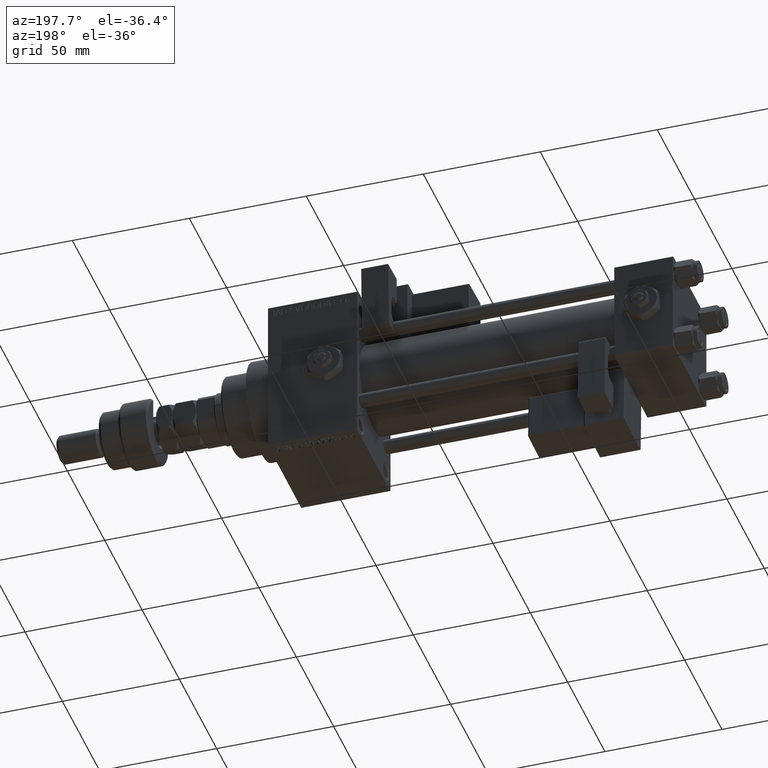
[diagram: clean part render]
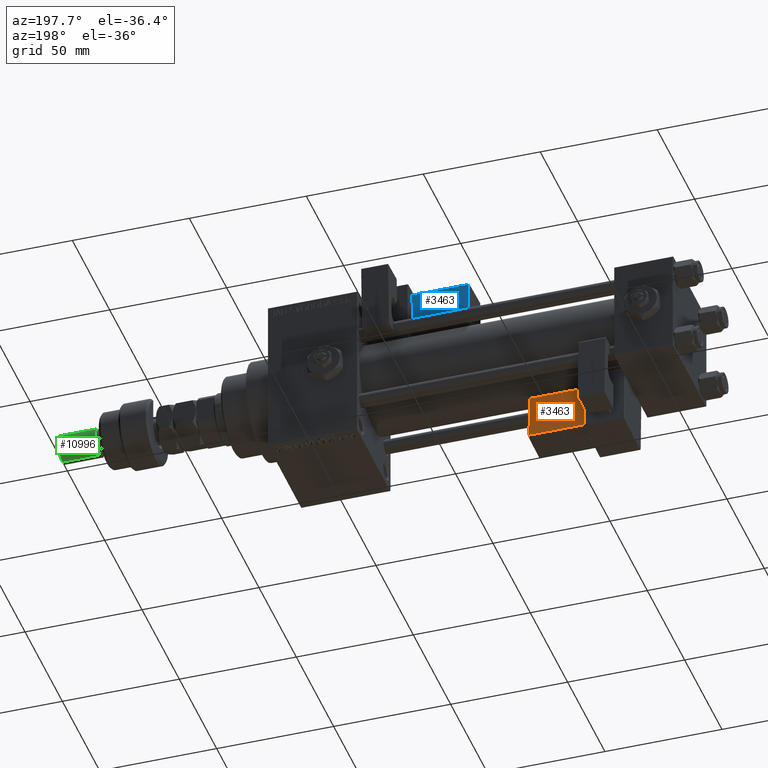
[diagram: same view with three faces highlighted in distinct colors, each labeled with its STEP entity id]
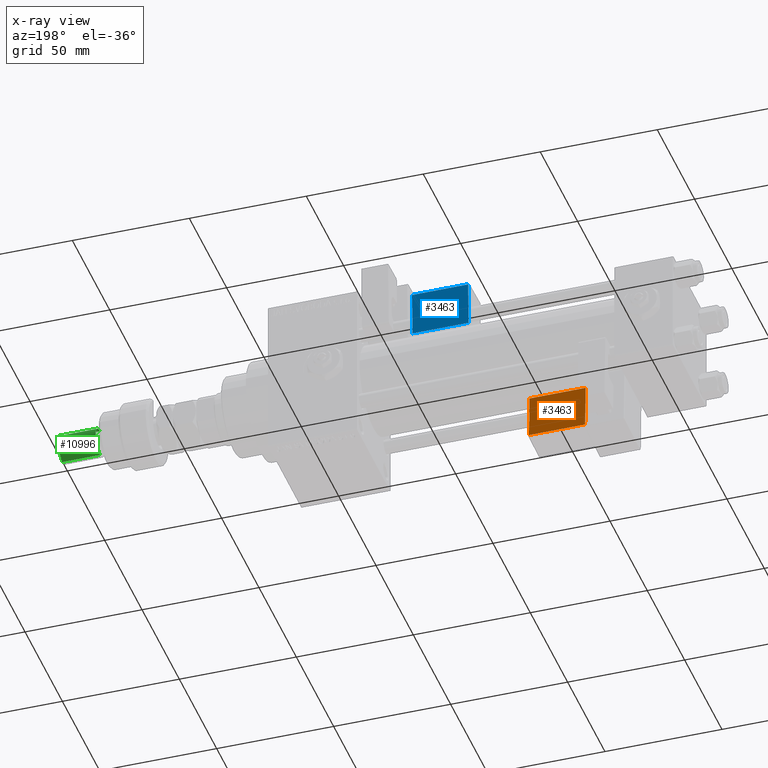
[diagram: x-ray of the same camera — body ghosted, the three highlighted faces saturated]
A machine part, auxiliary view with three faces highlighted in distinct colors.
The next image is the same camera in x-ray (body ghosted, the three faces saturated) — at least one of them is partly hidden behind the body in this view.
Their STEP definitions:

[orange] entity #3463 — the highlighted planar face has unit normal (0, -0.9994, -0.0353).
#1181 = VECTOR ( 'NONE', #13347, 1000.000000000000000 ) ;
#1880 = ORIENTED_EDGE ( 'NONE', *, *, #20697, .T. ) ;
#3463 = ADVANCED_FACE ( 'NONE', ( #6222 ), #47966, .F. ) ;
#4168 = CARTESIAN_POINT ( 'NONE',  ( 9.250000000000003553, -15.25000000000000000, 2.500000000000005773 ) ) ;
#6104 = EDGE_CURVE ( 'NONE', #25149, #50579, #13265, .T. ) ;
#6222 = FACE_OUTER_BOUND ( 'NONE', #16767, .T. ) ;
#9137 = CARTESIAN_POINT ( 'NONE',  ( 33.25000000000000000, -15.25000000000000000, 2.000000000000008438 ) ) ;
#12955 = LINE ( 'NONE', #16541, #49583 ) ;
#13265 = LINE ( 'NONE', #9137, #27894 ) ;
#13347 = DIRECTION ( 'NONE',  ( -1.000000000000000000, 0.000000000000000000, -1.334402673828313339E-16 ) ) ;
#16541 = CARTESIAN_POINT ( 'NONE',  ( 9.250000000000001776, -15.25000000000000000, 22.00000000000000355 ) ) ;
#16767 = EDGE_LOOP ( 'NONE', ( #1880, #41578, #51120, #51319 ) ) ;
#20697 = EDGE_CURVE ( 'NONE', #50579, #26326, #46849, .T. ) ;
#23516 = CARTESIAN_POINT ( 'NONE',  ( 33.75000000000000000, -15.25000000000000000, 21.50000000000000355 ) ) ;
#23612 = EDGE_CURVE ( 'NONE', #36472, #25149, #35856, .T. ) ;
#25149 = VERTEX_POINT ( 'NONE', #45147 ) ;
#25814 = VECTOR ( 'NONE', #52852, 1000.000000000000000 ) ;
#26326 = VERTEX_POINT ( 'NONE', #4168 ) ;
#27894 = VECTOR ( 'NONE', #37960, 1000.000000000000000 ) ;
#29677 = DIRECTION ( 'NONE',  ( -1.334402673828313339E-16, 0.000000000000000000, 1.000000000000000000 ) ) ;
#29856 = CARTESIAN_POINT ( 'NONE',  ( 9.250000000000001776, -15.25000000000000000, 21.50000000000000000 ) ) ;
#31464 = CARTESIAN_POINT ( 'NONE',  ( 33.75000000000000000, -15.25000000000000000, 22.00000000000000711 ) ) ;
#32000 = DIRECTION ( 'NONE',  ( 0.000000000000000000, -0.000000000000000000, -1.000000000000000000 ) ) ;
#34796 = AXIS2_PLACEMENT_3D ( 'NONE', #31464, #39972, #32000 ) ;
#35856 = LINE ( 'NONE', #23516, #25814 ) ;
#36472 = VERTEX_POINT ( 'NONE', #29856 ) ;
#37960 = DIRECTION ( 'NONE',  ( 1.734723475976807341E-16, -0.000000000000000000, -1.000000000000000000 ) ) ;
#38372 = CARTESIAN_POINT ( 'NONE',  ( 33.25000000000000000, -15.25000000000000000, 2.500000000000009326 ) ) ;
#39972 = DIRECTION ( 'NONE',  ( 0.000000000000000000, -1.000000000000000000, 0.000000000000000000 ) ) ;
#41578 = ORIENTED_EDGE ( 'NONE', *, *, #52074, .T. ) ;
#45147 = CARTESIAN_POINT ( 'NONE',  ( 33.25000000000000000, -15.25000000000000000, 21.50000000000000355 ) ) ;
#46849 = LINE ( 'NONE', #50399, #1181 ) ;
#47966 = PLANE ( 'NONE',  #34796 ) ;
#49583 = VECTOR ( 'NONE', #29677, 1000.000000000000000 ) ;
#50399 = CARTESIAN_POINT ( 'NONE',  ( 33.75000000000000000, -15.25000000000000000, 2.500000000000009326 ) ) ;
#50579 = VERTEX_POINT ( 'NONE', #38372 ) ;
#51120 = ORIENTED_EDGE ( 'NONE', *, *, #23612, .T. ) ;
#51319 = ORIENTED_EDGE ( 'NONE', *, *, #6104, .T. ) ;
#52074 = EDGE_CURVE ( 'NONE', #26326, #36472, #12955, .T. ) ;
#52852 = DIRECTION ( 'NONE',  ( 1.000000000000000000, -0.000000000000000000, 1.334402673828313339E-16 ) ) ;

[blue] entity #3463 — the highlighted planar face has unit normal (0, -0.9994, 0.0353).
#1181 = VECTOR ( 'NONE', #13347, 1000.000000000000000 ) ;
#1880 = ORIENTED_EDGE ( 'NONE', *, *, #20697, .T. ) ;
#3463 = ADVANCED_FACE ( 'NONE', ( #6222 ), #47966, .F. ) ;
#4168 = CARTESIAN_POINT ( 'NONE',  ( 9.250000000000003553, -15.25000000000000000, 2.500000000000005773 ) ) ;
#6104 = EDGE_CURVE ( 'NONE', #25149, #50579, #13265, .T. ) ;
#6222 = FACE_OUTER_BOUND ( 'NONE', #16767, .T. ) ;
#9137 = CARTESIAN_POINT ( 'NONE',  ( 33.25000000000000000, -15.25000000000000000, 2.000000000000008438 ) ) ;
#12955 = LINE ( 'NONE', #16541, #49583 ) ;
#13265 = LINE ( 'NONE', #9137, #27894 ) ;
#13347 = DIRECTION ( 'NONE',  ( -1.000000000000000000, 0.000000000000000000, -1.334402673828313339E-16 ) ) ;
#16541 = CARTESIAN_POINT ( 'NONE',  ( 9.250000000000001776, -15.25000000000000000, 22.00000000000000355 ) ) ;
#16767 = EDGE_LOOP ( 'NONE', ( #1880, #41578, #51120, #51319 ) ) ;
#20697 = EDGE_CURVE ( 'NONE', #50579, #26326, #46849, .T. ) ;
#23516 = CARTESIAN_POINT ( 'NONE',  ( 33.75000000000000000, -15.25000000000000000, 21.50000000000000355 ) ) ;
#23612 = EDGE_CURVE ( 'NONE', #36472, #25149, #35856, .T. ) ;
#25149 = VERTEX_POINT ( 'NONE', #45147 ) ;
#25814 = VECTOR ( 'NONE', #52852, 1000.000000000000000 ) ;
#26326 = VERTEX_POINT ( 'NONE', #4168 ) ;
#27894 = VECTOR ( 'NONE', #37960, 1000.000000000000000 ) ;
#29677 = DIRECTION ( 'NONE',  ( -1.334402673828313339E-16, 0.000000000000000000, 1.000000000000000000 ) ) ;
#29856 = CARTESIAN_POINT ( 'NONE',  ( 9.250000000000001776, -15.25000000000000000, 21.50000000000000000 ) ) ;
#31464 = CARTESIAN_POINT ( 'NONE',  ( 33.75000000000000000, -15.25000000000000000, 22.00000000000000711 ) ) ;
#32000 = DIRECTION ( 'NONE',  ( 0.000000000000000000, -0.000000000000000000, -1.000000000000000000 ) ) ;
#34796 = AXIS2_PLACEMENT_3D ( 'NONE', #31464, #39972, #32000 ) ;
#35856 = LINE ( 'NONE', #23516, #25814 ) ;
#36472 = VERTEX_POINT ( 'NONE', #29856 ) ;
#37960 = DIRECTION ( 'NONE',  ( 1.734723475976807341E-16, -0.000000000000000000, -1.000000000000000000 ) ) ;
#38372 = CARTESIAN_POINT ( 'NONE',  ( 33.25000000000000000, -15.25000000000000000, 2.500000000000009326 ) ) ;
#39972 = DIRECTION ( 'NONE',  ( 0.000000000000000000, -1.000000000000000000, 0.000000000000000000 ) ) ;
#41578 = ORIENTED_EDGE ( 'NONE', *, *, #52074, .T. ) ;
#45147 = CARTESIAN_POINT ( 'NONE',  ( 33.25000000000000000, -15.25000000000000000, 21.50000000000000355 ) ) ;
#46849 = LINE ( 'NONE', #50399, #1181 ) ;
#47966 = PLANE ( 'NONE',  #34796 ) ;
#49583 = VECTOR ( 'NONE', #29677, 1000.000000000000000 ) ;
#50399 = CARTESIAN_POINT ( 'NONE',  ( 33.75000000000000000, -15.25000000000000000, 2.500000000000009326 ) ) ;
#50579 = VERTEX_POINT ( 'NONE', #38372 ) ;
#51120 = ORIENTED_EDGE ( 'NONE', *, *, #23612, .T. ) ;
#51319 = ORIENTED_EDGE ( 'NONE', *, *, #6104, .T. ) ;
#52074 = EDGE_CURVE ( 'NONE', #26326, #36472, #12955, .T. ) ;
#52852 = DIRECTION ( 'NONE',  ( 1.000000000000000000, -0.000000000000000000, 1.334402673828313339E-16 ) ) ;

[green] entity #10996 — the highlighted cylindrical surface (edge-blend (fillet) strip) has radius 6 mm, axis along (-1, -0, 0).
#1390 = EDGE_CURVE ( 'NONE', #2758, #45628, #5759, .T. ) ;
#2152 = CARTESIAN_POINT ( 'NONE',  ( -6.000000000000000888, 0.000000000000000000, 24.99999999999999645 ) ) ;
#2758 = VERTEX_POINT ( 'NONE', #23382 ) ;
#3452 = CARTESIAN_POINT ( 'NONE',  ( 0.000000000000000000, 0.000000000000000000, 41.99999999999999289 ) ) ;
#3632 = AXIS2_PLACEMENT_3D ( 'NONE', #31545, #52415, #14829 ) ;
#4545 = LINE ( 'NONE', #8946, #46437 ) ;
#5759 = CIRCLE ( 'NONE', #50474, 6.000000000000000888 ) ;
#5865 = CARTESIAN_POINT ( 'NONE',  ( 0.000000000000000000, 0.000000000000000000, 24.99999999999999645 ) ) ;
#6339 = VERTEX_POINT ( 'NONE', #45074 ) ;
#7032 = VECTOR ( 'NONE', #28258, 1000.000000000000000 ) ;
#8946 = CARTESIAN_POINT ( 'NONE',  ( 6.000000000000000888, 7.347880794884120722E-16, 41.99999999999999289 ) ) ;
#10996 = ADVANCED_FACE ( 'NONE', ( #41060 ), #19941, .T. ) ;
#13998 = ORIENTED_EDGE ( 'NONE', *, *, #36716, .T. ) ;
#14829 = DIRECTION ( 'NONE',  ( 1.000000000000000000, 0.000000000000000000, 0.000000000000000000 ) ) ;
#19941 = CYLINDRICAL_SURFACE ( 'NONE', #46419, 6.000000000000000888 ) ;
#23382 = CARTESIAN_POINT ( 'NONE',  ( 6.000000000000000888, 7.347880794884120722E-16, 24.99999999999999645 ) ) ;
#28258 = DIRECTION ( 'NONE',  ( -0.000000000000000000, -0.000000000000000000, -1.000000000000000000 ) ) ;
#29988 = CARTESIAN_POINT ( 'NONE',  ( 6.000000000000000888, 7.347880794884120722E-16, 40.99999999999997868 ) ) ;
#31448 = DIRECTION ( 'NONE',  ( -0.000000000000000000, -0.000000000000000000, -1.000000000000000000 ) ) ;
#31545 = CARTESIAN_POINT ( 'NONE',  ( 0.000000000000000000, 0.000000000000000000, 40.99999999999997868 ) ) ;
#33465 = LINE ( 'NONE', #50211, #7032 ) ;
#34957 = DIRECTION ( 'NONE',  ( -0.000000000000000000, -0.000000000000000000, 1.000000000000000000 ) ) ;
#36716 = EDGE_CURVE ( 'NONE', #39012, #2758, #4545, .T. ) ;
#38036 = DIRECTION ( 'NONE',  ( -0.000000000000000000, -0.000000000000000000, -1.000000000000000000 ) ) ;
#38717 = EDGE_CURVE ( 'NONE', #6339, #45628, #33465, .T. ) ;
#39012 = VERTEX_POINT ( 'NONE', #29988 ) ;
#40254 = EDGE_CURVE ( 'NONE', #6339, #39012, #41318, .T. ) ;
#41060 = FACE_OUTER_BOUND ( 'NONE', #52393, .T. ) ;
#41318 = CIRCLE ( 'NONE', #3632, 6.000000000000000888 ) ;
#45074 = CARTESIAN_POINT ( 'NONE',  ( -6.000000000000000888, 0.000000000000000000, 40.99999999999997868 ) ) ;
#45628 = VERTEX_POINT ( 'NONE', #2152 ) ;
#46025 = ORIENTED_EDGE ( 'NONE', *, *, #40254, .T. ) ;
#46419 = AXIS2_PLACEMENT_3D ( 'NONE', #3452, #31448, #48217 ) ;
#46437 = VECTOR ( 'NONE', #38036, 1000.000000000000000 ) ;
#47346 = DIRECTION ( 'NONE',  ( 1.000000000000000000, 0.000000000000000000, 0.000000000000000000 ) ) ;
#48217 = DIRECTION ( 'NONE',  ( -1.000000000000000000, 0.000000000000000000, 0.000000000000000000 ) ) ;
#48616 = ORIENTED_EDGE ( 'NONE', *, *, #1390, .T. ) ;
#50211 = CARTESIAN_POINT ( 'NONE',  ( -6.000000000000000888, 0.000000000000000000, 41.99999999999999289 ) ) ;
#50474 = AXIS2_PLACEMENT_3D ( 'NONE', #5865, #34957, #47346 ) ;
#52393 = EDGE_LOOP ( 'NONE', ( #46025, #13998, #48616, #52978 ) ) ;
#52415 = DIRECTION ( 'NONE',  ( 0.000000000000000000, 0.000000000000000000, -1.000000000000000000 ) ) ;
#52978 = ORIENTED_EDGE ( 'NONE', *, *, #38717, .F. ) ;